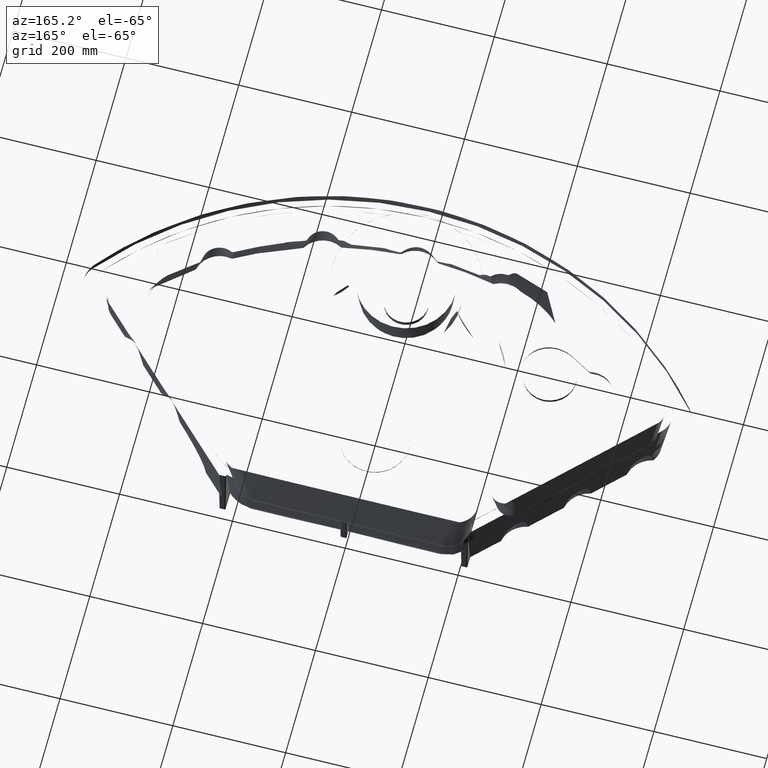
[diagram: clean part render]
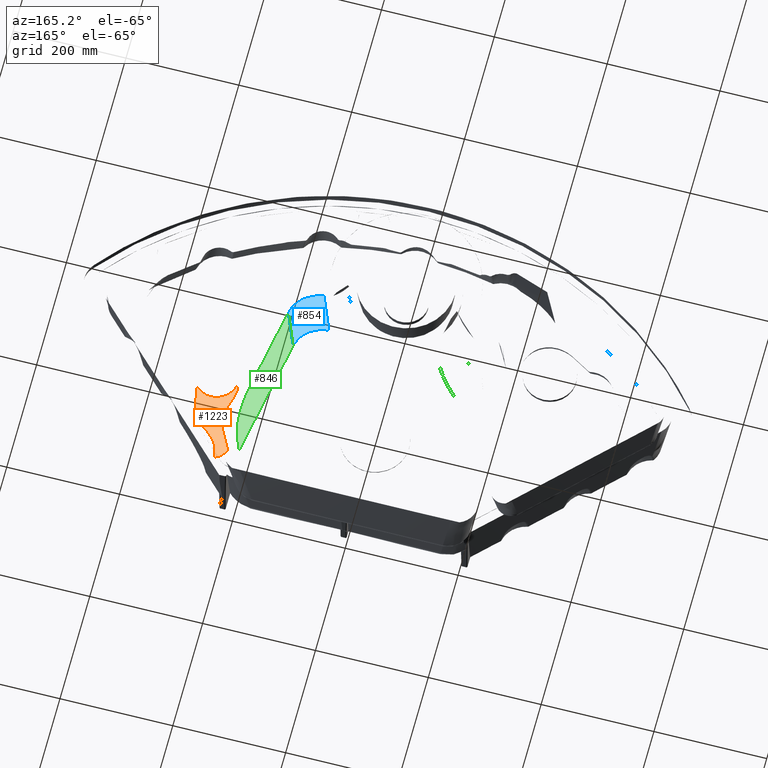
[diagram: same view with three faces highlighted in distinct colors, each labeled with its STEP entity id]
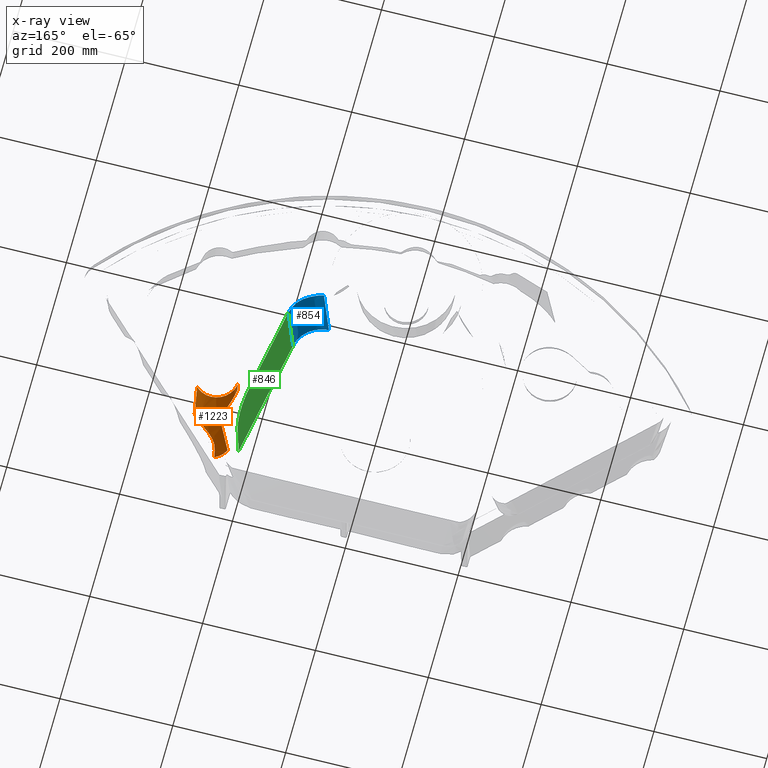
[diagram: x-ray of the same camera — body ghosted, the three highlighted faces saturated]
A machine part, auxiliary view with three faces highlighted in distinct colors.
The next image is the same camera in x-ray (body ghosted, the three faces saturated) — at least one of them is partly hidden behind the body in this view.
Their STEP definitions:

[orange] entity #1223 — the highlighted face is a freeform B-spline surface patch.
#74=(
BOUNDED_CURVE()
B_SPLINE_CURVE(3,(#37053,#37054,#37055,#37056),.UNSPECIFIED.,.F.,.F.)
B_SPLINE_CURVE_WITH_KNOTS((4,4),(0.,1.),.UNSPECIFIED.)
CURVE()
GEOMETRIC_REPRESENTATION_ITEM()
RATIONAL_B_SPLINE_CURVE((1.00000000702862,1.00000000702862,1.00000000702862,
1.00000000702862))
REPRESENTATION_ITEM('')
);
#77=(
BOUNDED_CURVE()
B_SPLINE_CURVE(3,(#38291,#38292,#38293,#38294),.UNSPECIFIED.,.F.,.F.)
B_SPLINE_CURVE_WITH_KNOTS((4,4),(0.,1.),.UNSPECIFIED.)
CURVE()
GEOMETRIC_REPRESENTATION_ITEM()
RATIONAL_B_SPLINE_CURVE((0.746115918502335,0.746115918502335,0.746115918502335,
0.746115918502335))
REPRESENTATION_ITEM('')
);
#78=(
BOUNDED_CURVE()
B_SPLINE_CURVE(3,(#38374,#38375,#38376,#38377),.UNSPECIFIED.,.F.,.F.)
B_SPLINE_CURVE_WITH_KNOTS((4,4),(0.,1.),.UNSPECIFIED.)
CURVE()
GEOMETRIC_REPRESENTATION_ITEM()
RATIONAL_B_SPLINE_CURVE((1.,1.,1.,1.))
REPRESENTATION_ITEM('')
);
#592=(
BOUNDED_SURFACE()
B_SPLINE_SURFACE(3,2,((#38393,#38394,#38395),(#38396,#38397,#38398),(#38399,
#38400,#38401),(#38402,#38403,#38404)),.UNSPECIFIED.,.F.,.F.,.F.)
B_SPLINE_SURFACE_WITH_KNOTS((4,4),(3,3),(0.,1.),(0.,1.),.UNSPECIFIED.)
GEOMETRIC_REPRESENTATION_ITEM()
RATIONAL_B_SPLINE_SURFACE(((1.00000000702862,0.490026159015299,1.),(1.00000000702862,
0.490026159015299,1.),(1.00000000702862,0.490026159015299,1.),(1.00000000702862,
0.490026159015299,1.)))
REPRESENTATION_ITEM('')
SURFACE()
);
#1223=ADVANCED_FACE('',(#1787),#592,.T.);
#1787=FACE_OUTER_BOUND('',#2325,.T.);
#2325=EDGE_LOOP('',(#4647,#4648,#4649,#4650,#4651,#4652,#4653,#4654));
#4647=ORIENTED_EDGE('',*,*,#7218,.F.);
#4648=ORIENTED_EDGE('',*,*,#7219,.F.);
#4649=ORIENTED_EDGE('',*,*,#7217,.T.);
#4650=ORIENTED_EDGE('',*,*,#7137,.T.);
#4651=ORIENTED_EDGE('',*,*,#7145,.T.);
#4652=ORIENTED_EDGE('',*,*,#7220,.F.);
#4653=ORIENTED_EDGE('',*,*,#7221,.T.);
#4654=ORIENTED_EDGE('',*,*,#7222,.F.);
#5785=VERTEX_POINT('',#36913);
#5786=VERTEX_POINT('',#36938);
#5790=VERTEX_POINT('',#37052);
#5831=VERTEX_POINT('',#38290);
#5832=VERTEX_POINT('',#38313);
#5833=VERTEX_POINT('',#38314);
#5834=VERTEX_POINT('',#38373);
#5835=VERTEX_POINT('',#38378);
#7137=EDGE_CURVE('',#5786,#5785,#8457,.T.);
#7145=EDGE_CURVE('',#5785,#5790,#74,.T.);
#7217=EDGE_CURVE('',#5831,#5786,#77,.T.);
#7218=EDGE_CURVE('',#5832,#5833,#8532,.T.);
#7219=EDGE_CURVE('',#5831,#5832,#8533,.T.);
#7220=EDGE_CURVE('',#5834,#5790,#8534,.T.);
#7221=EDGE_CURVE('',#5834,#5835,#78,.T.);
#7222=EDGE_CURVE('',#5833,#5835,#8535,.T.);
#8457=B_SPLINE_CURVE_WITH_KNOTS('',3,(#36914,#36915,#36916,#36917,#36918,
#36919,#36920,#36921,#36922,#36923,#36924,#36925,#36926,#36927,#36928,#36929,
#36930,#36931,#36932,#36933,#36934,#36935,#36936,#36937),.UNSPECIFIED.,.F.,
 .F.,(4,2,2,2,2,2,2,2,2,2,2,4),(0.,0.125,0.25,0.374999999999999,0.499999999999999,
0.624999999999999,0.687499999999999,0.71875,0.750000000000001,0.812500000000001,
0.875000000000001,1.),.UNSPECIFIED.);
#8532=B_SPLINE_CURVE_WITH_KNOTS('',3,(#38307,#38308,#38309,#38310,#38311,
#38312),.UNSPECIFIED.,.F.,.F.,(4,2,4),(0.,0.5,1.),.UNSPECIFIED.);
#8533=B_SPLINE_CURVE_WITH_KNOTS('',3,(#38315,#38316,#38317,#38318,#38319,
#38320),.UNSPECIFIED.,.F.,.F.,(4,2,4),(0.,0.5,1.),.UNSPECIFIED.);
#8534=B_SPLINE_CURVE_WITH_KNOTS('',3,(#38321,#38322,#38323,#38324,#38325,
#38326,#38327,#38328,#38329,#38330,#38331,#38332,#38333,#38334,#38335,#38336,
#38337,#38338,#38339,#38340,#38341,#38342,#38343,#38344,#38345,#38346,#38347,
#38348,#38349,#38350,#38351,#38352,#38353,#38354,#38355,#38356,#38357,#38358,
#38359,#38360,#38361,#38362,#38363,#38364,#38365,#38366,#38367,#38368,#38369,
#38370,#38371,#38372),.UNSPECIFIED.,.F.,.F.,(4,2,2,2,2,2,2,2,2,2,2,2,2,2,
2,2,2,2,2,2,2,2,2,2,2,4),(0.,0.0625000000000052,0.0937500000000076,0.109375000000009,
0.12500000000001,0.187500000000016,0.21875000000002,0.250000000000023,0.312500000000029,
0.343750000000032,0.359375000000034,0.375000000000035,0.43750000000004,0.468750000000043,
0.500000000000045,0.625000000000049,0.68750000000005,0.71875000000005,0.73437500000005,
0.750000000000049,0.812500000000043,0.84375000000004,0.859375000000039,0.867187500000038,
0.875000000000036,1.),.UNSPECIFIED.);
#8535=B_SPLINE_CURVE_WITH_KNOTS('',3,(#38379,#38380,#38381,#38382,#38383,
#38384,#38385,#38386,#38387,#38388,#38389,#38390,#38391,#38392),.UNSPECIFIED.,
 .F.,.F.,(4,2,2,2,2,2,4),(0.,0.125,0.25,0.375,0.499999999999999,0.75,1.),
 .UNSPECIFIED.);
#36913=CARTESIAN_POINT('',(297.386739512415,-85.2818230660878,-79.5603912977971));
#36914=CARTESIAN_POINT('',(253.119912218405,-117.638179215051,-137.519865461587));
#36915=CARTESIAN_POINT('',(253.227406673278,-116.2619022397,-134.171485601632));
#36916=CARTESIAN_POINT('',(253.592907136144,-115.010275952147,-130.842338886063));
#36917=CARTESIAN_POINT('',(254.853830475997,-112.726091545895,-124.235384995398));
#36918=CARTESIAN_POINT('',(255.762614357182,-111.683352155602,-120.922782056327));
#36919=CARTESIAN_POINT('',(258.092131461207,-109.764477146973,-114.527541023793));
#36920=CARTESIAN_POINT('',(259.510382555348,-108.87485673259,-111.414622531755));
#36921=CARTESIAN_POINT('',(262.866313952169,-107.091461989416,-105.417690448759));
#36922=CARTESIAN_POINT('',(264.783667675459,-106.20700060844,-102.561551777852));
#36923=CARTESIAN_POINT('',(269.182266052657,-104.200382635981,-97.0461783657651));
#36924=CARTESIAN_POINT('',(271.55694401088,-103.127046805143,-94.53651476943));
#36925=CARTESIAN_POINT('',(275.282424027668,-101.304114063272,-91.1852029702157));
#36926=CARTESIAN_POINT('',(276.550827142535,-100.661184509935,-90.1368581679603));
#36927=CARTESIAN_POINT('',(278.475345846128,-99.6338526983808,-88.6710177784226));
#36928=CARTESIAN_POINT('',(279.120469258783,-99.2809523969825,-88.2001690029195));
#36929=CARTESIAN_POINT('',(280.414591581987,-98.553031585135,-87.2943893397818));
#36930=CARTESIAN_POINT('',(281.0388285127,-98.1927518365526,-86.8753584671336));
#36931=CARTESIAN_POINT('',(283.06059432037,-96.9890086664162,-85.5770972505897));
#36932=CARTESIAN_POINT('',(284.413748685224,-96.1346265081381,-84.7882091099421));
#36933=CARTESIAN_POINT('',(287.095381633801,-94.3179898144529,-83.3642234767149));
#36934=CARTESIAN_POINT('',(288.384909180205,-93.3860631874404,-82.7458794285925));
#36935=CARTESIAN_POINT('',(292.395830004668,-90.2532367671359,-81.016502094132));
#36936=CARTESIAN_POINT('',(295.013876501441,-87.8806725044378,-80.1567600887251));
#36937=CARTESIAN_POINT('',(297.386739464569,-85.2818231079203,-79.5603912819264));
#36938=CARTESIAN_POINT('',(253.119912217918,-117.638179221294,-137.519865476777));
#37052=CARTESIAN_POINT('',(299.284176992908,-60.9813665648231,-20.4397553111416));
#37053=CARTESIAN_POINT('',(297.386739815287,-85.2818228081569,-79.5603914163952));
#37054=CARTESIAN_POINT('',(298.019218885164,-77.1816711764832,-59.8535139288504));
#37055=CARTESIAN_POINT('',(298.651697942924,-69.0815195551679,-40.1466364366606));
#37056=CARTESIAN_POINT('',(299.284177002377,-60.9813679324038,-20.4397589451199));
#38290=CARTESIAN_POINT('',(252.675270601917,-123.332698927522,-151.374075606169));
#38291=CARTESIAN_POINT('',(252.67527060303,-123.332698928017,-151.374075606187));
#38292=CARTESIAN_POINT('',(252.823484482924,-121.434525707173,-146.756005587055));
#38293=CARTESIAN_POINT('',(252.971698361779,-119.536352485126,-142.137935568384));
#38294=CARTESIAN_POINT('',(253.119912239705,-117.638179262013,-137.519865550121));
#38307=CARTESIAN_POINT('',(233.576746052843,-105.227347339579,-150.65748936887));
#38308=CARTESIAN_POINT('',(235.157400940385,-103.069514329205,-139.898402958075));
#38309=CARTESIAN_POINT('',(236.985077263281,-100.919612801507,-129.179774043947));
#38310=CARTESIAN_POINT('',(241.37327425487,-96.653519554052,-107.91332383991));
#38311=CARTESIAN_POINT('',(243.908461096048,-94.5359229697011,-97.35840285684));
#38312=CARTESIAN_POINT('',(247.148121671997,-92.4654978388503,-87.0413434074242));
#38313=CARTESIAN_POINT('',(233.576927531322,-105.227249306715,-150.656572726044));
#38314=CARTESIAN_POINT('',(247.148124244071,-92.4654961950715,-87.04133521637));
#38315=CARTESIAN_POINT('',(252.675270594127,-123.332698924058,-151.374075606046));
#38316=CARTESIAN_POINT('',(248.612216054807,-121.526032508049,-151.309835374605));
#38317=CARTESIAN_POINT('',(244.864747150632,-118.981396760446,-151.212702795053));
#38318=CARTESIAN_POINT('',(238.396819725083,-112.794548358415,-150.967639043857));
#38319=CARTESIAN_POINT('',(235.720277976855,-109.234346638674,-150.823097202014));
#38320=CARTESIAN_POINT('',(233.576916904855,-105.227666723421,-150.657502567774));
#38321=CARTESIAN_POINT('',(232.998476736793,-38.5484740615122,-21.1894020246697));
#38322=CARTESIAN_POINT('',(233.302866059839,-40.2250674389113,-21.1935755460071));
#38323=CARTESIAN_POINT('',(233.710358439181,-41.9364565593165,-21.1908492606226));
#38324=CARTESIAN_POINT('',(234.500031145055,-44.5311717111484,-21.1872691311441));
#38325=CARTESIAN_POINT('',(234.792962874639,-45.4005905844039,-21.1861972034354));
#38326=CARTESIAN_POINT('',(235.279453237878,-46.7075917679793,-21.1864548769167));
#38327=CARTESIAN_POINT('',(235.449461565931,-47.1437318771183,-21.1868539390617));
#38328=CARTESIAN_POINT('',(235.805535652384,-48.0162406384119,-21.1885851428521));
#38329=CARTESIAN_POINT('',(236.003894610257,-48.4802067459313,-21.1900413703811));
#38330=CARTESIAN_POINT('',(236.913714998836,-50.5227303129871,-21.1992229849753));
#38331=CARTESIAN_POINT('',(237.749332423255,-52.1253612361269,-21.1938437550832));
#38332=CARTESIAN_POINT('',(239.159868614225,-54.4512907470744,-21.1792579457246));
#38333=CARTESIAN_POINT('',(239.656137800737,-55.2135884484714,-21.1733106460758));
#38334=CARTESIAN_POINT('',(240.698946300907,-56.707053416361,-21.1612827902403));
#38335=CARTESIAN_POINT('',(241.215336469287,-57.4005192583131,-21.1554775859822));
#38336=CARTESIAN_POINT('',(243.016780748898,-59.6530219458215,-21.1391255690951));
#38337=CARTESIAN_POINT('',(244.292592729696,-61.0323735262563,-21.1257421140096));
#38338=CARTESIAN_POINT('',(246.267573006836,-62.9043592275315,-21.1058827904399));
#38339=CARTESIAN_POINT('',(246.936081630571,-63.4956811304131,-21.0992294564513));
#38340=CARTESIAN_POINT('',(247.947765530798,-64.3334035687656,-21.0890981888751));
#38341=CARTESIAN_POINT('',(248.286482009282,-64.6044440062733,-21.085691958078));
#38342=CARTESIAN_POINT('',(248.965863459377,-65.1301936933151,-21.0787596108533));
#38343=CARTESIAN_POINT('',(249.270751961617,-65.3590400447823,-21.0756141851793));
#38344=CARTESIAN_POINT('',(251.155328434952,-66.7214210848838,-21.0555569854735));
#38345=CARTESIAN_POINT('',(252.723036388557,-67.6895383945801,-21.0377893820566));
#38346=CARTESIAN_POINT('',(255.125321544515,-68.9493979437019,-21.0112527425688));
#38347=CARTESIAN_POINT('',(255.934517191096,-69.3374112085157,-21.0023793119788));
#38348=CARTESIAN_POINT('',(257.563209371955,-70.0492803080278,-20.9844800199562));
#38349=CARTESIAN_POINT('',(258.346735382321,-70.3603509637293,-20.975861272013));
#38350=CARTESIAN_POINT('',(262.633842079969,-71.8845877873375,-20.9272165707934));
#38351=CARTESIAN_POINT('',(266.268932744002,-72.5931029220179,-20.885008929434));
#38352=CARTESIAN_POINT('',(271.593326713057,-72.8517447374384,-20.8216529906589));
#38353=CARTESIAN_POINT('',(273.397532093345,-72.8100966560036,-20.7991715241487));
#38354=CARTESIAN_POINT('',(276.108563537623,-72.5465295347076,-20.765964376089));
#38355=CARTESIAN_POINT('',(277.012982645863,-72.4252643633313,-20.7549359948174));
#38356=CARTESIAN_POINT('',(278.365568474859,-72.1930981628178,-20.7383523543478));
#38357=CARTESIAN_POINT('',(278.815755956915,-72.1073386215126,-20.7328146217962));
#38358=CARTESIAN_POINT('',(279.713922607861,-71.9191397879036,-20.7216664420006));
#38359=CARTESIAN_POINT('',(280.192820668939,-71.8090325934064,-20.7156622500743));
#38360=CARTESIAN_POINT('',(282.270468486913,-71.2937768741677,-20.6892049405485));
#38361=CARTESIAN_POINT('',(283.962582767237,-70.7532263268514,-20.66611490651));
#38362=CARTESIAN_POINT('',(286.494944116571,-69.737171456967,-20.6321873023648));
#38363=CARTESIAN_POINT('',(287.338023643121,-69.3644311683264,-20.6209322263237));
#38364=CARTESIAN_POINT('',(288.594357342618,-68.7541069255608,-20.6039687591851));
#38365=CARTESIAN_POINT('',(289.011753254396,-68.5421405863233,-20.5982963585803));
#38366=CARTESIAN_POINT('',(289.63493392136,-68.2114848038691,-20.5897005837048));
#38367=CARTESIAN_POINT('',(289.842175332252,-68.0991491796097,-20.5868205178062));
#38368=CARTESIAN_POINT('',(290.255548242121,-67.8702655640607,-20.5810173945168));
#38369=CARTESIAN_POINT('',(290.498933073251,-67.7322110246689,-20.5775591517052));
#38370=CARTESIAN_POINT('',(293.359255542979,-66.0809319193987,-20.5364675194715));
#38371=CARTESIAN_POINT('',(296.405054054476,-63.879570168672,-20.4901082132799));
#38372=CARTESIAN_POINT('',(299.284177205738,-60.9813677585895,-20.4397590230901));
#38373=CARTESIAN_POINT('',(232.998482070407,-38.5484050403429,-21.1892346245182));
#38374=CARTESIAN_POINT('',(232.998476687155,-38.5484738408581,-21.1894021137724));
#38375=CARTESIAN_POINT('',(232.864960036309,-40.2584199634639,-25.3495339638379));
#38376=CARTESIAN_POINT('',(232.731443385498,-41.9683660862265,-29.5096658138401));
#38377=CARTESIAN_POINT('',(232.597926734693,-43.6783122090126,-33.6697976638327));
#38378=CARTESIAN_POINT('',(232.597930760882,-43.6783220424253,-33.6697767114754));
#38379=CARTESIAN_POINT('',(247.148126816145,-92.4654945512927,-87.0413270253158));
#38380=CARTESIAN_POINT('',(248.146189959037,-91.8276454927653,-83.8628848027346));
#38381=CARTESIAN_POINT('',(248.931548693039,-90.9715127898501,-80.6792351196794));
#38382=CARTESIAN_POINT('',(249.7668066213,-88.7533975286421,-74.2747389188593));
#38383=CARTESIAN_POINT('',(249.786994421746,-87.396201931043,-71.0954501676952));
#38384=CARTESIAN_POINT('',(249.063531910513,-84.3180276801618,-65.0951697578269));
#38385=CARTESIAN_POINT('',(248.329799760457,-82.5754131635223,-62.2288410615975));
#38386=CARTESIAN_POINT('',(246.512665045695,-78.8715267737375,-56.9703236507943));
#38387=CARTESIAN_POINT('',(245.421376649006,-76.8778484803893,-54.5217970629139));
#38388=CARTESIAN_POINT('',(241.993001675527,-70.5220108819549,-47.7030133934995));
#38389=CARTESIAN_POINT('',(239.560378221775,-65.8774316562043,-43.9104742302405));
#38390=CARTESIAN_POINT('',(235.321434145096,-55.4393540880078,-37.5928109319853));
#38391=CARTESIAN_POINT('',(233.54485707925,-49.7687007908495,-35.1714075366045));
#38392=CARTESIAN_POINT('',(232.59792776589,-43.6782990024738,-33.669765533614));
#38393=CARTESIAN_POINT('',(294.921320159536,-116.856420775743,-156.378303022355));
#38394=CARTESIAN_POINT('',(242.991406148693,-161.241557907316,-136.467948176438));
#38395=CARTESIAN_POINT('',(228.461605129977,-96.6521321467184,-162.549926269657));
#38396=CARTESIAN_POINT('',(296.435836112863,-97.4600352466958,-109.188792494048));
#38397=CARTESIAN_POINT('',(244.505922076352,-141.845172783674,-89.2784374806702));
#38398=CARTESIAN_POINT('',(229.976120962564,-77.2557469052235,-115.360415619278));
#38399=CARTESIAN_POINT('',(297.9503518938,-78.0636498650087,-61.9992818996651));
#38400=CARTESIAN_POINT('',(246.020437869948,-122.448787344117,-42.0889269104804));
#38401=CARTESIAN_POINT('',(231.490636756007,-57.8593614897546,-68.1709050391824));
#38402=CARTESIAN_POINT('',(299.464867691995,-58.6672644685677,-14.8097713118946));
#38403=CARTESIAN_POINT('',(247.534953665434,-103.05240195243,5.10058367933071));
#38404=CARTESIAN_POINT('',(233.005152554053,-38.4629760947398,-20.9813944508209));

[blue] entity #854 — the highlighted face is a freeform B-spline surface patch.
#400=(
BOUNDED_SURFACE()
B_SPLINE_SURFACE(3,2,((#16717,#16718,#16719),(#16720,#16721,#16722),(#16723,
#16724,#16725),(#16726,#16727,#16728)),.UNSPECIFIED.,.F.,.F.,.F.)
B_SPLINE_SURFACE_WITH_KNOTS((4,4),(3,3),(0.,1.),(0.,1.),.UNSPECIFIED.)
GEOMETRIC_REPRESENTATION_ITEM()
RATIONAL_B_SPLINE_SURFACE(((1.,0.769663450228653,1.),(1.,0.769663450228653,
1.),(1.,0.769663450228653,1.),(1.,0.769663450228653,1.)))
REPRESENTATION_ITEM('')
SURFACE()
);
#854=ADVANCED_FACE('',(#1426),#400,.T.);
#1426=FACE_OUTER_BOUND('',#1948,.T.);
#1948=EDGE_LOOP('',(#2932,#2933,#2934,#2935,#2936,#2937));
#2932=ORIENTED_EDGE('',*,*,#6229,.F.);
#2933=ORIENTED_EDGE('',*,*,#6258,.T.);
#2934=ORIENTED_EDGE('',*,*,#6259,.T.);
#2935=ORIENTED_EDGE('',*,*,#6260,.F.);
#2936=ORIENTED_EDGE('',*,*,#6253,.F.);
#2937=ORIENTED_EDGE('',*,*,#6224,.F.);
#5194=VERTEX_POINT('',#14354);
#5206=VERTEX_POINT('',#15508);
#5209=VERTEX_POINT('',#15912);
#5228=VERTEX_POINT('',#16645);
#5232=VERTEX_POINT('',#16707);
#5233=VERTEX_POINT('',#16712);
#6224=EDGE_CURVE('',#5194,#5206,#7658,.T.);
#6229=EDGE_CURVE('',#5209,#5194,#7663,.T.);
#6253=EDGE_CURVE('',#5206,#5228,#7686,.T.);
#6258=EDGE_CURVE('',#5209,#5232,#7691,.T.);
#6259=EDGE_CURVE('',#5232,#5233,#7692,.T.);
#6260=EDGE_CURVE('',#5228,#5233,#7693,.T.);
#7658=B_SPLINE_CURVE_WITH_KNOTS('',3,(#15486,#15487,#15488,#15489,#15490,
#15491,#15492,#15493,#15494,#15495,#15496,#15497,#15498,#15499,#15500,#15501,
#15502,#15503,#15504,#15505,#15506,#15507),.UNSPECIFIED.,.F.,.F.,(4,1,1,
1,1,1,1,1,1,1,1,1,1,1,1,1,1,1,1,4),(0.,0.105886212615575,0.132357765769469,
0.157174846851245,0.158829318923363,0.1621382630676,0.165447207211837,0.17206509550031,
0.185300872077257,0.211772425231151,0.423544850462302,0.529431063077877,
0.635317275693453,0.741203488309028,0.847089700924604,0.952975913540179,
0.979447466694073,0.99268324327102,0.999301131559494,1.),.UNSPECIFIED.);
#7663=B_SPLINE_CURVE_WITH_KNOTS('',3,(#15914,#15915,#15916,#15917),.UNSPECIFIED.,
 .F.,.F.,(4,4),(0.,1.),.UNSPECIFIED.);
#7686=B_SPLINE_CURVE_WITH_KNOTS('',3,(#16641,#16642,#16643,#16644),.UNSPECIFIED.,
 .F.,.F.,(4,4),(0.,1.),.UNSPECIFIED.);
#7691=B_SPLINE_CURVE_WITH_KNOTS('',3,(#16691,#16692,#16693,#16694,#16695,
#16696,#16697,#16698,#16699,#16700,#16701,#16702,#16703,#16704,#16705,#16706),
 .UNSPECIFIED.,.F.,.F.,(4,2,2,2,2,2,2,4),(0.,0.249999999999997,0.312499999999997,
0.374999999999997,0.499999999999998,0.624999999999998,0.749999999999998,
1.),.UNSPECIFIED.);
#7692=B_SPLINE_CURVE_WITH_KNOTS('',3,(#16708,#16709,#16710,#16711),.UNSPECIFIED.,
 .F.,.F.,(4,4),(0.,1.),.UNSPECIFIED.);
#7693=B_SPLINE_CURVE_WITH_KNOTS('',3,(#16713,#16714,#16715,#16716),.UNSPECIFIED.,
 .F.,.F.,(4,4),(0.,1.),.UNSPECIFIED.);
#14354=CARTESIAN_POINT('',(175.455969880789,114.482911810947,-148.992666455462));
#15486=CARTESIAN_POINT('',(175.455969880789,114.482911810947,-148.992666455462));
#15487=CARTESIAN_POINT('',(174.987840306907,117.036573995972,-149.028493963063));
#15488=CARTESIAN_POINT('',(174.166130382553,120.185157906314,-149.066567874714));
#15489=CARTESIAN_POINT('',(172.856714620437,123.810639939469,-149.101307276812));
#15490=CARTESIAN_POINT('',(172.372638596035,125.015427737113,-149.111624426746));
#15491=CARTESIAN_POINT('',(172.088005734713,125.68791136918,-149.117021097117));
#15492=CARTESIAN_POINT('',(172.008298858797,125.874439526533,-149.118498972326));
#15493=CARTESIAN_POINT('',(171.879399921105,126.172295896284,-149.120818272713));
#15494=CARTESIAN_POINT('',(171.65024258603,126.691982948514,-149.124757980659));
#15495=CARTESIAN_POINT('',(171.177624712776,127.724963222563,-149.132159262188));
#15496=CARTESIAN_POINT('',(168.45808781058,133.260530238573,-149.167127166767));
#15497=CARTESIAN_POINT('',(163.479986089347,140.187066410728,-149.171372979438));
#15498=CARTESIAN_POINT('',(155.703603752891,147.113746195,-149.105477344613));
#15499=CARTESIAN_POINT('',(149.169269759872,151.391418474287,-149.021346973538));
#15500=CARTESIAN_POINT('',(142.083354661908,154.674590636088,-148.904856715928));
#15501=CARTESIAN_POINT('',(134.59124618037,156.876998180193,-148.757465348094));
#15502=CARTESIAN_POINT('',(128.792423962216,157.694231579908,-148.629313420024));
#15503=CARTESIAN_POINT('',(125.226986532888,157.867927836691,-148.540491082163));
#15504=CARTESIAN_POINT('',(124.091549699458,157.891914460315,-148.515297067989));
#15505=CARTESIAN_POINT('',(123.587789336878,157.895625111646,-148.498785689929));
#15506=CARTESIAN_POINT('',(123.408398421681,157.896013170697,-148.496830556839));
#15507=CARTESIAN_POINT('',(123.391263302745,157.896043194487,-148.496673837113));
#15508=CARTESIAN_POINT('',(123.391266135683,157.8960448325,-148.496398140828));
#15912=CARTESIAN_POINT('',(185.993601382068,122.312433873628,-37.0252846162704));
#15914=CARTESIAN_POINT('',(185.993601421293,122.312433892497,-37.0252842169674));
#15915=CARTESIAN_POINT('',(182.481057574459,119.702593198647,-74.3477449631323));
#15916=CARTESIAN_POINT('',(178.968513727624,117.092752504797,-111.670205709297));
#15917=CARTESIAN_POINT('',(175.455969880789,114.482911810947,-148.992666455462));
#16641=CARTESIAN_POINT('',(123.391269174286,157.896046470511,-148.49612244506));
#16642=CARTESIAN_POINT('',(127.104200929388,160.65477655631,-109.044444195448));
#16643=CARTESIAN_POINT('',(130.81713268449,163.41350664211,-69.5927659458362));
#16644=CARTESIAN_POINT('',(134.530064439592,166.172236727909,-30.1410876962244));
#16645=CARTESIAN_POINT('',(134.530052063978,166.172227525898,-30.1412192911162));
#16691=CARTESIAN_POINT('',(185.993601339554,122.312433872868,-37.0252850155325));
#16692=CARTESIAN_POINT('',(185.367392208893,125.761176983709,-37.0174679759058));
#16693=CARTESIAN_POINT('',(184.333863091299,129.497251549826,-37.0332619044924));
#16694=CARTESIAN_POINT('',(182.294086080789,134.33684608531,-37.046789156527));
#16695=CARTESIAN_POINT('',(181.817493164131,135.374406753658,-37.0491674145842));
#16696=CARTESIAN_POINT('',(180.941607994453,137.146575914097,-37.0521116341513));
#16697=CARTESIAN_POINT('',(180.479220362498,138.019499836329,-37.0532213655344));
#16698=CARTESIAN_POINT('',(179.021289593748,140.594932294926,-37.055435307779));
#16699=CARTESIAN_POINT('',(177.954917837622,142.254041235806,-37.0554143339762));
#16700=CARTESIAN_POINT('',(175.64856904162,145.437371937598,-37.0524696601153));
#16701=CARTESIAN_POINT('',(174.370191916444,147.002054195003,-37.0493566474346));
#16702=CARTESIAN_POINT('',(171.854629144604,149.769005609427,-37.0415579595595));
#16703=CARTESIAN_POINT('',(170.503187661076,151.107692804538,-37.036685648659));
#16704=CARTESIAN_POINT('',(166.171252637814,154.946084343005,-37.0164388045364));
#16705=CARTESIAN_POINT('',(162.910630865907,157.268457396559,-36.9952211025888));
#16706=CARTESIAN_POINT('',(159.313695388792,159.231590109525,-36.9611257273328));
#16707=CARTESIAN_POINT('',(159.313710377182,159.231613106137,-36.9608685994169));
#16708=CARTESIAN_POINT('',(159.313725365573,159.231636102749,-36.9606114715011));
#16709=CARTESIAN_POINT('',(154.085931848818,162.084703421738,-36.9123045965117));
#16710=CARTESIAN_POINT('',(148.268413615847,164.266388625088,-35.494047928736));
#16711=CARTESIAN_POINT('',(142.137800183631,165.412449005267,-32.7064056825031));
#16712=CARTESIAN_POINT('',(142.137729903734,165.41244841971,-32.7065372411655));
#16713=CARTESIAN_POINT('',(134.530039706408,166.172218323578,-30.1413508904202));
#16714=CARTESIAN_POINT('',(137.274117465007,166.125283890977,-30.8125445192505));
#16715=CARTESIAN_POINT('',(139.817498557393,165.844933270004,-31.6664624899688));
#16716=CARTESIAN_POINT('',(142.137659623836,165.412447834152,-32.7066687998279));
#16717=CARTESIAN_POINT('',(134.596872293297,166.221875355318,-29.4312222522124));
#16718=CARTESIAN_POINT('',(178.434921480878,165.934778779836,-33.5368945616425));
#16719=CARTESIAN_POINT('',(186.534599599504,122.714398714108,-31.276919456144));
#16720=CARTESIAN_POINT('',(130.839393709238,163.430046716697,-69.3562318593039));
#16721=CARTESIAN_POINT('',(174.677442903009,163.142950142745,-73.4619041694235));
#16722=CARTESIAN_POINT('',(182.777121019548,119.922570071693,-71.2019290633563));
#16723=CARTESIAN_POINT('',(127.081915132688,160.638218078027,-109.281241467098));
#16724=CARTESIAN_POINT('',(170.919964321648,160.351121502574,-113.38691377666));
#16725=CARTESIAN_POINT('',(179.019642438524,117.130741434981,-111.126938670867));
#16726=CARTESIAN_POINT('',(123.324436551309,157.846389439389,-149.206251074441));
#16727=CARTESIAN_POINT('',(167.16248573889,157.559292863907,-153.311923383871));
#16728=CARTESIAN_POINT('',(175.262163857516,114.338912798179,-151.051948278372));

[green] entity #846 — the highlighted face is a freeform B-spline surface patch.
#151=B_SPLINE_SURFACE_WITH_KNOTS('',3,3,((#15930,#15931,#15932,#15933),(#15934,
#15935,#15936,#15937),(#15938,#15939,#15940,#15941),(#15942,#15943,#15944,
#15945)),.UNSPECIFIED.,.F.,.F.,.F.,(4,4),(4,4),(0.,1.),(0.,1.),.UNSPECIFIED.);
#340=LINE('',#15918,#375);
#375=VECTOR('',#8974,1.);
#846=ADVANCED_FACE('',(#1418),#151,.T.);
#1418=FACE_OUTER_BOUND('',#1940,.T.);
#1940=EDGE_LOOP('',(#2888,#2889,#2890,#2891,#2892));
#2888=ORIENTED_EDGE('',*,*,#6228,.F.);
#2889=ORIENTED_EDGE('',*,*,#6229,.T.);
#2890=ORIENTED_EDGE('',*,*,#6208,.T.);
#2891=ORIENTED_EDGE('',*,*,#6230,.F.);
#2892=ORIENTED_EDGE('',*,*,#6231,.T.);
#5192=VERTEX_POINT('',#14348);
#5194=VERTEX_POINT('',#14354);
#5209=VERTEX_POINT('',#15912);
#5210=VERTEX_POINT('',#15913);
#5211=VERTEX_POINT('',#15919);
#6208=EDGE_CURVE('',#5194,#5192,#7643,.T.);
#6228=EDGE_CURVE('',#5209,#5210,#7662,.T.);
#6229=EDGE_CURVE('',#5209,#5194,#7663,.T.);
#6230=EDGE_CURVE('',#5211,#5192,#340,.T.);
#6231=EDGE_CURVE('',#5211,#5210,#7664,.T.);
#7643=B_SPLINE_CURVE_WITH_KNOTS('',3,(#14350,#14351,#14352,#14353),.UNSPECIFIED.,
 .F.,.F.,(4,4),(0.,1.),.UNSPECIFIED.);
#7662=B_SPLINE_CURVE_WITH_KNOTS('',3,(#15908,#15909,#15910,#15911),.UNSPECIFIED.,
 .F.,.F.,(4,4),(0.,1.),.UNSPECIFIED.);
#7663=B_SPLINE_CURVE_WITH_KNOTS('',3,(#15914,#15915,#15916,#15917),.UNSPECIFIED.,
 .F.,.F.,(4,4),(0.,1.),.UNSPECIFIED.);
#7664=B_SPLINE_CURVE_WITH_KNOTS('',3,(#15920,#15921,#15922,#15923,#15924,
#15925,#15926,#15927,#15928,#15929),.UNSPECIFIED.,.F.,.F.,(4,2,2,2,4),(0.,
0.25,0.5,0.75,1.),.UNSPECIFIED.);
#8974=DIRECTION('',(-0.0734332301399792,-0.173179351155118,-0.982148905739197));
#14348=CARTESIAN_POINT('',(214.886737584727,-102.386310560711,-148.992666455462));
#14350=CARTESIAN_POINT('',(175.455969880789,114.482911810947,-148.992666455462));
#14351=CARTESIAN_POINT('',(188.599559115435,42.1931710203943,-148.992666455462));
#14352=CARTESIAN_POINT('',(201.743148350081,-30.0965697701586,-148.992666455462));
#14353=CARTESIAN_POINT('',(214.886737584727,-102.386310560711,-148.992666455462));
#14354=CARTESIAN_POINT('',(175.455969880789,114.482911810947,-148.992666455462));
#15908=CARTESIAN_POINT('',(185.993601421293,122.312433892497,-37.0252842169674));
#15909=CARTESIAN_POINT('',(193.095416113067,83.2003801018246,-37.1139114628738));
#15910=CARTESIAN_POINT('',(202.477588498925,31.5535508536772,-37.1902982978806));
#15911=CARTESIAN_POINT('',(214.14011857887,-32.6280538519452,-37.2544447219878));
#15912=CARTESIAN_POINT('',(185.993601382068,122.312433873628,-37.0252846162704));
#15913=CARTESIAN_POINT('',(214.14011808417,-32.6280539370648,-37.2544494976976));
#15914=CARTESIAN_POINT('',(185.993601421293,122.312433892497,-37.0252842169674));
#15915=CARTESIAN_POINT('',(182.481057574459,119.702593198647,-74.3477449631323));
#15916=CARTESIAN_POINT('',(178.968513727624,117.092752504797,-111.670205709297));
#15917=CARTESIAN_POINT('',(175.455969880789,114.482911810947,-148.992666455462));
#15918=CARTESIAN_POINT('',(219.614646692906,-91.2363689046776,-85.7582050518004));
#15919=CARTESIAN_POINT('',(219.541664340533,-91.4084849399607,-86.734323593566));
#15920=CARTESIAN_POINT('',(219.541664542708,-91.4084844631669,-86.7343208895341));
#15921=CARTESIAN_POINT('',(220.061398149297,-90.1827842101746,-79.7830293283353));
#15922=CARTESIAN_POINT('',(220.327222600913,-87.8142164754766,-73.2634161585154));
#15923=CARTESIAN_POINT('',(220.35115296395,-80.7619439204316,-61.0365708064099));
#15924=CARTESIAN_POINT('',(220.105903424831,-76.2768262203764,-55.6987402068138));
#15925=CARTESIAN_POINT('',(219.11248954654,-65.5133867952392,-46.6788129642885));
#15926=CARTESIAN_POINT('',(218.386056811115,-59.4805735930654,-43.2111399230212));
#15927=CARTESIAN_POINT('',(216.510704794147,-46.3711597458388,-38.4541401788857));
#15928=CARTESIAN_POINT('',(215.40795038976,-39.6052221967496,-37.2614115863703));
#15929=CARTESIAN_POINT('',(214.14011758947,-32.6280540221844,-37.2544542734073));
#15930=CARTESIAN_POINT('',(226.777460697879,-101.6040731554,-36.3534799235364));
#15931=CARTESIAN_POINT('',(222.894829445591,-102.310006110361,-73.8998754341783));
#15932=CARTESIAN_POINT('',(219.012198193302,-103.015939065323,-111.44627094482));
#15933=CARTESIAN_POINT('',(215.129566941013,-103.721872020284,-148.992666455462));
#15934=CARTESIAN_POINT('',(213.125054666691,-26.5158399838609,-36.3534799235364));
#15935=CARTESIAN_POINT('',(209.242423414402,-27.2217729388225,-73.8998754341783));
#15936=CARTESIAN_POINT('',(205.359792162113,-27.9277058937841,-111.44627094482));
#15937=CARTESIAN_POINT('',(201.477160909824,-28.6336388487457,-148.992666455462));
#15938=CARTESIAN_POINT('',(199.472648635502,48.5723931876777,-36.3534799235364));
#15939=CARTESIAN_POINT('',(195.590017383213,47.8664602327161,-73.8998754341783));
#15940=CARTESIAN_POINT('',(191.707386130924,47.1605272777545,-111.44627094482));
#15941=CARTESIAN_POINT('',(187.824754878635,46.4545943227929,-148.992666455462));
#15942=CARTESIAN_POINT('',(185.820242604313,123.660626359216,-36.3534799235364));
#15943=CARTESIAN_POINT('',(181.937611352024,122.954693404255,-73.8998754341783));
#15944=CARTESIAN_POINT('',(178.054980099735,122.248760449293,-111.44627094482));
#15945=CARTESIAN_POINT('',(174.172348847446,121.542827494332,-148.992666455462));